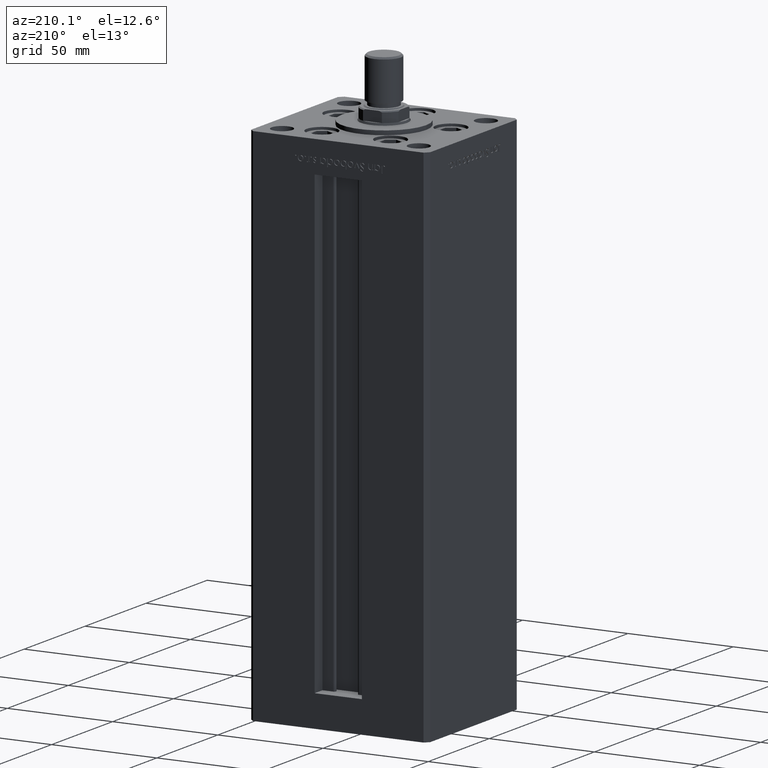
[diagram: clean part render]
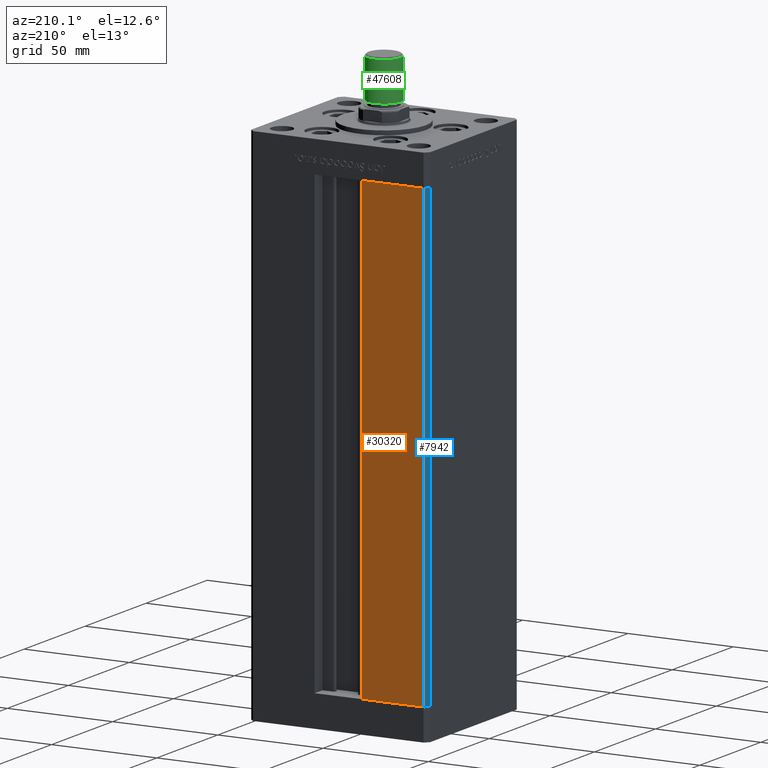
[diagram: same view with three faces highlighted in distinct colors, each labeled with its STEP entity id]
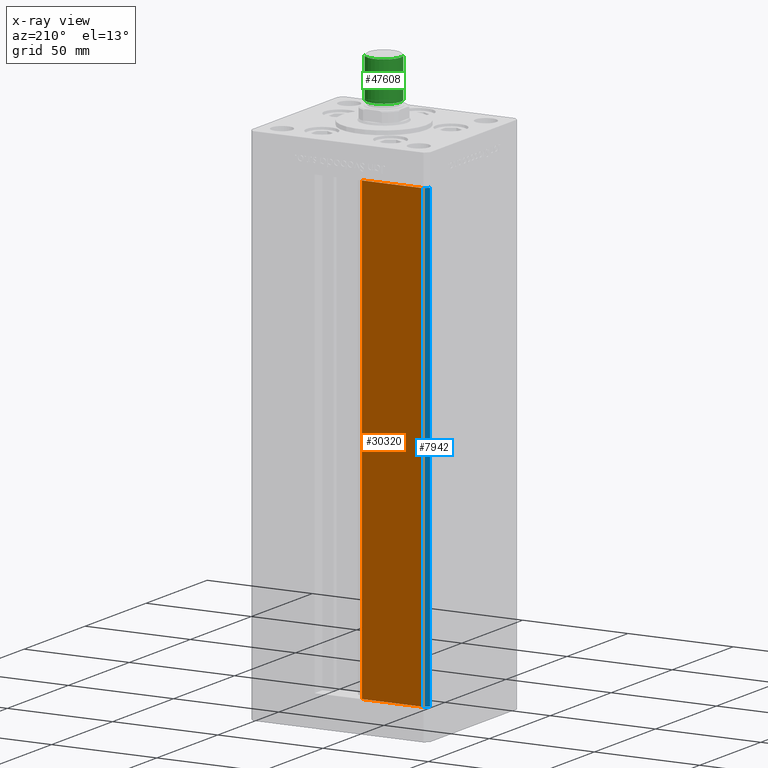
[diagram: x-ray of the same camera — body ghosted, the three highlighted faces saturated]
A machine part, auxiliary view with three faces highlighted in distinct colors.
The next image is the same camera in x-ray (body ghosted, the three faces saturated) — at least one of them is partly hidden behind the body in this view.
Their STEP definitions:

[orange] entity #30320 — the highlighted planar face has unit normal (-0, -1, 0).
#368 = CARTESIAN_POINT ( 'NONE',  ( -11.25000000000000000, 37.50000000000000000, 218.5000000000000000 ) ) ;
#2093 = DIRECTION ( 'NONE',  ( -0.000000000000000000, -0.000000000000000000, 1.000000000000000000 ) ) ;
#4250 = DIRECTION ( 'NONE',  ( -1.000000000000000000, 2.372271420139223331E-16, 0.000000000000000000 ) ) ;
#4470 = CARTESIAN_POINT ( 'NONE',  ( -11.25000000000000000, 37.50000000000000000, 0.000000000000000000 ) ) ;
#5594 = EDGE_LOOP ( 'NONE', ( #11744, #45550, #11891, #21185 ) ) ;
#7217 = VECTOR ( 'NONE', #4250, 1000.000000000000000 ) ;
#7308 = CARTESIAN_POINT ( 'NONE',  ( -11.25000000000000000, 37.50000000000000000, 218.5000000000000000 ) ) ;
#7362 = CARTESIAN_POINT ( 'NONE',  ( -11.25000000000000000, 37.50000000000000000, 218.5000000000000000 ) ) ;
#8037 = LINE ( 'NONE', #368, #19611 ) ;
#11595 = FACE_OUTER_BOUND ( 'NONE', #5594, .T. ) ;
#11744 = ORIENTED_EDGE ( 'NONE', *, *, #17284, .T. ) ;
#11891 = ORIENTED_EDGE ( 'NONE', *, *, #42069, .T. ) ;
#15878 = CARTESIAN_POINT ( 'NONE',  ( -11.25000000000000000, 37.50000000000000000, 0.000000000000000000 ) ) ;
#17098 = VECTOR ( 'NONE', #39963, 1000.000000000000000 ) ;
#17284 = EDGE_CURVE ( 'NONE', #42049, #49807, #8037, .T. ) ;
#17782 = EDGE_CURVE ( 'NONE', #42049, #44121, #28575, .T. ) ;
#19611 = VECTOR ( 'NONE', #20493, 1000.000000000000000 ) ;
#20493 = DIRECTION ( 'NONE',  ( 1.000000000000000000, 0.000000000000000000, 0.000000000000000000 ) ) ;
#21185 = ORIENTED_EDGE ( 'NONE', *, *, #17782, .F. ) ;
#22452 = CARTESIAN_POINT ( 'NONE',  ( -11.25000000000000000, 37.50000000000000000, 0.000000000000000000 ) ) ;
#22996 = PLANE ( 'NONE',  #44392 ) ;
#28575 = LINE ( 'NONE', #51667, #17098 ) ;
#30320 = ADVANCED_FACE ( 'NONE', ( #11595 ), #22996, .F. ) ;
#32569 = LINE ( 'NONE', #15878, #7217 ) ;
#35155 = VERTEX_POINT ( 'NONE', #4470 ) ;
#36223 = DIRECTION ( 'NONE',  ( -2.372271420139223824E-16, -1.000000000000000000, 0.000000000000000000 ) ) ;
#37585 = LINE ( 'NONE', #22452, #50358 ) ;
#38427 = CARTESIAN_POINT ( 'NONE',  ( -40.50000000000000000, 37.50000000000000711, 0.000000000000000000 ) ) ;
#38967 = CARTESIAN_POINT ( 'NONE',  ( -40.50000000000000000, 37.50000000000000711, 218.5000000000000000 ) ) ;
#39963 = DIRECTION ( 'NONE',  ( -0.000000000000000000, -0.000000000000000000, -1.000000000000000000 ) ) ;
#40198 = DIRECTION ( 'NONE',  ( 1.000000000000000000, -2.372271420139223824E-16, 0.000000000000000000 ) ) ;
#42049 = VERTEX_POINT ( 'NONE', #38967 ) ;
#42069 = EDGE_CURVE ( 'NONE', #35155, #44121, #32569, .T. ) ;
#44121 = VERTEX_POINT ( 'NONE', #38427 ) ;
#44392 = AXIS2_PLACEMENT_3D ( 'NONE', #7362, #36223, #40198 ) ;
#44459 = EDGE_CURVE ( 'NONE', #35155, #49807, #37585, .T. ) ;
#45550 = ORIENTED_EDGE ( 'NONE', *, *, #44459, .F. ) ;
#49807 = VERTEX_POINT ( 'NONE', #7308 ) ;
#50358 = VECTOR ( 'NONE', #2093, 1000.000000000000000 ) ;
#51667 = CARTESIAN_POINT ( 'NONE',  ( -40.50000000000000000, 37.50000000000000711, 218.5000000000000000 ) ) ;

[blue] entity #7942 — the highlighted planar face has unit normal (0.7071, -0.7071, 0).
#1280 = EDGE_CURVE ( 'NONE', #42049, #11647, #20004, .T. ) ;
#2371 = CARTESIAN_POINT ( 'NONE',  ( -40.50000000000000000, 37.50000000000000711, 0.000000000000000000 ) ) ;
#3137 = DIRECTION ( 'NONE',  ( -0.7071067811865500152, -0.7071067811865451302, 0.000000000000000000 ) ) ;
#7942 = ADVANCED_FACE ( 'NONE', ( #21638 ), #21117, .F. ) ;
#8085 = DIRECTION ( 'NONE',  ( -0.7071067811865500152, -0.7071067811865451302, 0.000000000000000000 ) ) ;
#9462 = DIRECTION ( 'NONE',  ( 0.7071067811865450192, -0.7071067811865500152, 0.000000000000000000 ) ) ;
#10049 = DIRECTION ( 'NONE',  ( -0.000000000000000000, -0.000000000000000000, -1.000000000000000000 ) ) ;
#11647 = VERTEX_POINT ( 'NONE', #40774 ) ;
#16560 = VECTOR ( 'NONE', #3137, 1000.000000000000114 ) ;
#17098 = VECTOR ( 'NONE', #39963, 1000.000000000000000 ) ;
#17672 = DIRECTION ( 'NONE',  ( 0.7071067811865500152, 0.7071067811865450192, 0.000000000000000000 ) ) ;
#17782 = EDGE_CURVE ( 'NONE', #42049, #44121, #28575, .T. ) ;
#20004 = LINE ( 'NONE', #35891, #33820 ) ;
#21117 = PLANE ( 'NONE',  #37304 ) ;
#21638 = FACE_OUTER_BOUND ( 'NONE', #37398, .T. ) ;
#24233 = CARTESIAN_POINT ( 'NONE',  ( -42.50000000000000711, 35.50000000000001421, 0.000000000000000000 ) ) ;
#28575 = LINE ( 'NONE', #51667, #17098 ) ;
#29444 = VERTEX_POINT ( 'NONE', #24233 ) ;
#31140 = ORIENTED_EDGE ( 'NONE', *, *, #1280, .F. ) ;
#32764 = ORIENTED_EDGE ( 'NONE', *, *, #17782, .T. ) ;
#33820 = VECTOR ( 'NONE', #8085, 1000.000000000000114 ) ;
#35891 = CARTESIAN_POINT ( 'NONE',  ( -40.50000000000000000, 37.50000000000000711, 218.5000000000000000 ) ) ;
#37304 = AXIS2_PLACEMENT_3D ( 'NONE', #49475, #9462, #17672 ) ;
#37398 = EDGE_LOOP ( 'NONE', ( #43822, #46724, #31140, #32764 ) ) ;
#38427 = CARTESIAN_POINT ( 'NONE',  ( -40.50000000000000000, 37.50000000000000711, 0.000000000000000000 ) ) ;
#38648 = LINE ( 'NONE', #2371, #16560 ) ;
#38967 = CARTESIAN_POINT ( 'NONE',  ( -40.50000000000000000, 37.50000000000000711, 218.5000000000000000 ) ) ;
#38994 = EDGE_CURVE ( 'NONE', #11647, #29444, #50594, .T. ) ;
#39542 = VECTOR ( 'NONE', #10049, 1000.000000000000000 ) ;
#39963 = DIRECTION ( 'NONE',  ( -0.000000000000000000, -0.000000000000000000, -1.000000000000000000 ) ) ;
#40774 = CARTESIAN_POINT ( 'NONE',  ( -42.50000000000000711, 35.50000000000001421, 218.5000000000000000 ) ) ;
#42049 = VERTEX_POINT ( 'NONE', #38967 ) ;
#42421 = EDGE_CURVE ( 'NONE', #44121, #29444, #38648, .T. ) ;
#43822 = ORIENTED_EDGE ( 'NONE', *, *, #42421, .T. ) ;
#44121 = VERTEX_POINT ( 'NONE', #38427 ) ;
#45563 = CARTESIAN_POINT ( 'NONE',  ( -42.50000000000000711, 35.50000000000001421, 218.5000000000000000 ) ) ;
#46724 = ORIENTED_EDGE ( 'NONE', *, *, #38994, .F. ) ;
#49475 = CARTESIAN_POINT ( 'NONE',  ( -40.50000000000000000, 37.50000000000000711, 218.5000000000000000 ) ) ;
#50594 = LINE ( 'NONE', #45563, #39542 ) ;
#51667 = CARTESIAN_POINT ( 'NONE',  ( -40.50000000000000000, 37.50000000000000711, 218.5000000000000000 ) ) ;

[green] entity #47608 — the highlighted cylindrical surface (edge-blend (fillet) strip) has radius 8 mm, axis along (0, 0, 1).
#2034 = DIRECTION ( 'NONE',  ( -1.000000000000000000, 0.000000000000000000, 0.000000000000000000 ) ) ;
#2258 = AXIS2_PLACEMENT_3D ( 'NONE', #37207, #40398, #12568 ) ;
#4514 = EDGE_CURVE ( 'NONE', #10953, #52457, #44560, .T. ) ;
#5064 = CARTESIAN_POINT ( 'NONE',  ( 0.000000000000000000, 0.000000000000000000, 0.8000000000000055955 ) ) ;
#9221 = LINE ( 'NONE', #17427, #47476 ) ;
#9899 = EDGE_CURVE ( 'NONE', #52457, #40403, #9221, .T. ) ;
#10953 = VERTEX_POINT ( 'NONE', #37243 ) ;
#12568 = DIRECTION ( 'NONE',  ( 1.000000000000000000, 0.000000000000000000, 0.000000000000000000 ) ) ;
#13144 = DIRECTION ( 'NONE',  ( -0.000000000000000000, -0.000000000000000000, -1.000000000000000000 ) ) ;
#13930 = CARTESIAN_POINT ( 'NONE',  ( 0.000000000000000000, 0.000000000000000000, 19.50000000000000000 ) ) ;
#16752 = EDGE_CURVE ( 'NONE', #21165, #40403, #41606, .T. ) ;
#17163 = DIRECTION ( 'NONE',  ( -0.000000000000000000, -0.000000000000000000, -1.000000000000000000 ) ) ;
#17427 = CARTESIAN_POINT ( 'NONE',  ( -8.000000000000000000, 0.000000000000000000, 19.50000000000000000 ) ) ;
#17436 = AXIS2_PLACEMENT_3D ( 'NONE', #13930, #30087, #2034 ) ;
#18512 = CARTESIAN_POINT ( 'NONE',  ( -8.000000000000000000, 0.000000000000000000, 19.50000000000000000 ) ) ;
#20987 = ORIENTED_EDGE ( 'NONE', *, *, #9899, .F. ) ;
#21165 = VERTEX_POINT ( 'NONE', #48450 ) ;
#23310 = VECTOR ( 'NONE', #13144, 1000.000000000000000 ) ;
#27949 = ORIENTED_EDGE ( 'NONE', *, *, #4514, .F. ) ;
#29149 = DIRECTION ( 'NONE',  ( -0.000000000000000000, -0.000000000000000000, 1.000000000000000000 ) ) ;
#29571 = CARTESIAN_POINT ( 'NONE',  ( 8.000000000000000000, 9.797174393178825657E-16, 19.50000000000000000 ) ) ;
#30087 = DIRECTION ( 'NONE',  ( -0.000000000000000000, -0.000000000000000000, -1.000000000000000000 ) ) ;
#30740 = ORIENTED_EDGE ( 'NONE', *, *, #47601, .T. ) ;
#33283 = CYLINDRICAL_SURFACE ( 'NONE', #17436, 8.000000000000000000 ) ;
#33388 = DIRECTION ( 'NONE',  ( 1.000000000000000000, 0.000000000000000000, 0.000000000000000000 ) ) ;
#35546 = EDGE_LOOP ( 'NONE', ( #27949, #30740, #42507, #20987 ) ) ;
#37207 = CARTESIAN_POINT ( 'NONE',  ( 0.000000000000000000, 0.000000000000000000, 19.50000000000000000 ) ) ;
#37243 = CARTESIAN_POINT ( 'NONE',  ( 8.000000000000000000, 9.797174393178825657E-16, 19.50000000000000000 ) ) ;
#40398 = DIRECTION ( 'NONE',  ( 0.000000000000000000, 0.000000000000000000, 1.000000000000000000 ) ) ;
#40403 = VERTEX_POINT ( 'NONE', #41171 ) ;
#40780 = AXIS2_PLACEMENT_3D ( 'NONE', #5064, #29149, #33388 ) ;
#41171 = CARTESIAN_POINT ( 'NONE',  ( -8.000000000000000000, 0.000000000000000000, 0.8000000000000055955 ) ) ;
#41606 = CIRCLE ( 'NONE', #40780, 8.000000000000000000 ) ;
#42507 = ORIENTED_EDGE ( 'NONE', *, *, #16752, .T. ) ;
#44560 = CIRCLE ( 'NONE', #2258, 8.000000000000000000 ) ;
#45222 = LINE ( 'NONE', #29571, #23310 ) ;
#47476 = VECTOR ( 'NONE', #17163, 1000.000000000000000 ) ;
#47601 = EDGE_CURVE ( 'NONE', #10953, #21165, #45222, .T. ) ;
#47608 = ADVANCED_FACE ( 'NONE', ( #50257 ), #33283, .T. ) ;
#48450 = CARTESIAN_POINT ( 'NONE',  ( 8.000000000000000000, 9.797174393178825657E-16, 0.8000000000000055955 ) ) ;
#50257 = FACE_OUTER_BOUND ( 'NONE', #35546, .T. ) ;
#52457 = VERTEX_POINT ( 'NONE', #18512 ) ;